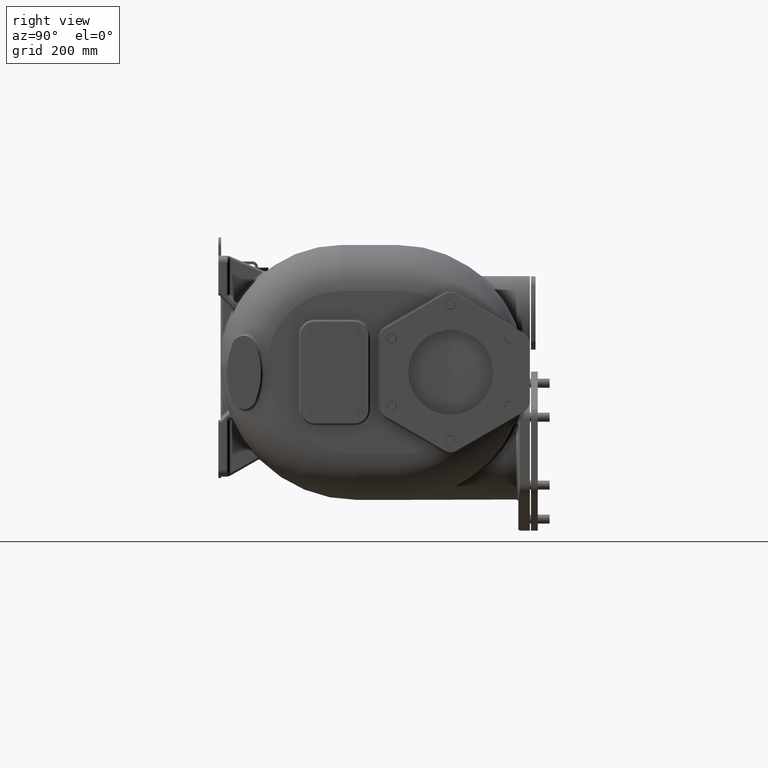
[diagram: clean part render]
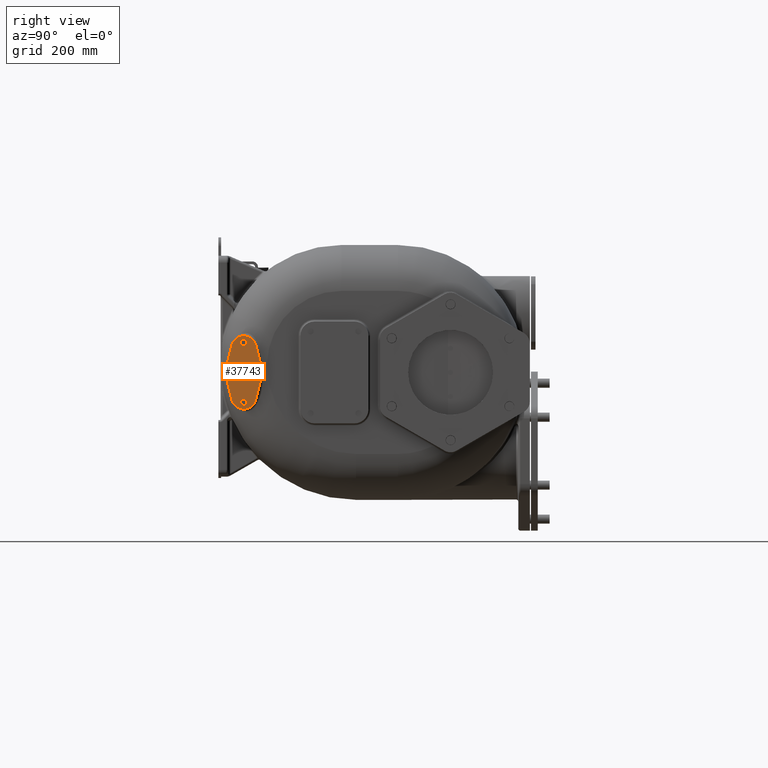
[diagram: same view with one face highlighted and labeled with its STEP entity id]
A machine part, right view. The second image highlights one B-rep face of the part: STEP entity #37743.
In plain terms, the highlighted planar face has unit normal (1, 0, 0).
Its self-contained STEP definition (entity closure, byte-faithful):
#37540=CARTESIAN_POINT('',(1.95E2,1.549999999963E2,-2.600168154567E1));
#37541=DIRECTION('',(1.E0,0.E0,0.E0));
#37542=DIRECTION('',(0.E0,-9.322295967066E-1,3.618673500390E-1));
#37543=AXIS2_PLACEMENT_3D('',#37540,#37541,#37542);
#37545=CARTESIAN_POINT('',(1.95E2,4.5E1,1.670663690865E1));
#37546=DIRECTION('',(1.E0,0.E0,0.E0));
#37547=DIRECTION('',(0.E0,9.323701608822E-1,3.615050249949E-1));
#37548=AXIS2_PLACEMENT_3D('',#37545,#37546,#37547);
#37550=CARTESIAN_POINT('',(1.95E2,-6.5E1,-2.600168154567E1));
#37551=DIRECTION('',(1.E0,0.E0,0.E0));
#37552=DIRECTION('',(0.E0,9.322295967101E-1,-3.618673500301E-1));
#37553=AXIS2_PLACEMENT_3D('',#37550,#37551,#37552);
#37555=CARTESIAN_POINT('',(1.95E2,4.5E1,-6.871E1));
#37556=DIRECTION('',(1.E0,0.E0,0.E0));
#37557=DIRECTION('',(0.E0,-9.323701608822E-1,-3.615050249948E-1));
#37558=AXIS2_PLACEMENT_3D('',#37555,#37556,#37557);
#37560=CARTESIAN_POINT('',(1.95E2,4.5E1,-7.851E1));
#37561=DIRECTION('',(1.E0,0.E0,0.E0));
#37562=DIRECTION('',(0.E0,0.E0,-1.E0));
#37563=AXIS2_PLACEMENT_3D('',#37560,#37561,#37562);
#37565=CARTESIAN_POINT('',(1.95E2,4.5E1,-7.851E1));
#37566=DIRECTION('',(1.E0,0.E0,0.E0));
#37567=DIRECTION('',(0.E0,0.E0,1.E0));
#37568=AXIS2_PLACEMENT_3D('',#37565,#37566,#37567);
#37570=CARTESIAN_POINT('',(1.95E2,4.5E1,2.649E1));
#37571=DIRECTION('',(-1.E0,0.E0,0.E0));
#37572=DIRECTION('',(0.E0,0.E0,1.E0));
#37573=AXIS2_PLACEMENT_3D('',#37570,#37571,#37572);
#37575=CARTESIAN_POINT('',(1.95E2,4.5E1,2.649E1));
#37576=DIRECTION('',(-1.E0,0.E0,0.E0));
#37577=DIRECTION('',(0.E0,0.E0,-1.E0));
#37578=AXIS2_PLACEMENT_3D('',#37575,#37576,#37577);
#37664=CARTESIAN_POINT('',(1.95E2,2.448785646059E1,2.465974745854E1));
#37665=CARTESIAN_POINT('',(1.95E2,2.448785646059E1,-7.666311054989E1));
#37666=VERTEX_POINT('',#37664);
#37667=VERTEX_POINT('',#37665);
#37668=CARTESIAN_POINT('',(1.95E2,6.551214353941E1,-7.666311054989E1));
#37669=VERTEX_POINT('',#37668);
#37670=CARTESIAN_POINT('',(1.95E2,6.551214353941E1,2.465974745854E1));
#37671=VERTEX_POINT('',#37670);
#37676=CARTESIAN_POINT('',(1.95E2,4.5E1,-8.426E1));
#37677=CARTESIAN_POINT('',(1.95E2,4.5E1,-7.276E1));
#37678=VERTEX_POINT('',#37676);
#37679=VERTEX_POINT('',#37677);
#37681=CARTESIAN_POINT('',(1.95E2,4.5E1,3.224E1));
#37683=VERTEX_POINT('',#37681);
#37685=CARTESIAN_POINT('',(1.95E2,4.5E1,2.074E1));
#37687=VERTEX_POINT('',#37685);
#37718=CARTESIAN_POINT('',(1.95E2,4.5E1,-2.601E1));
#37719=DIRECTION('',(1.E0,0.E0,0.E0));
#37720=DIRECTION('',(0.E0,0.E0,1.E0));
#37721=AXIS2_PLACEMENT_3D('',#37718,#37719,#37720);
#37722=PLANE('',#37721);
#37724=ORIENTED_EDGE('',*,*,#37723,.F.);
#37726=ORIENTED_EDGE('',*,*,#37725,.F.);
#37728=ORIENTED_EDGE('',*,*,#37727,.F.);
#37730=ORIENTED_EDGE('',*,*,#37729,.F.);
#37731=EDGE_LOOP('',(#37724,#37726,#37728,#37730));
#37732=FACE_OUTER_BOUND('',#37731,.F.);
#37734=ORIENTED_EDGE('',*,*,#37733,.T.);
#37736=ORIENTED_EDGE('',*,*,#37735,.T.);
#37737=EDGE_LOOP('',(#37734,#37736));
#37738=FACE_BOUND('',#37737,.F.);
#37739=ORIENTED_EDGE('',*,*,#37710,.F.);
#37740=ORIENTED_EDGE('',*,*,#37699,.F.);
#37741=EDGE_LOOP('',(#37739,#37740));
#37742=FACE_BOUND('',#37741,.F.);
#37743=ADVANCED_FACE('',(#37732,#37738,#37742),#37722,.T.);
#37544=CIRCLE('',#37543,1.399999999966E2);
#37549=CIRCLE('',#37548,2.2E1);
#37554=CIRCLE('',#37553,1.4E2);
#37559=CIRCLE('',#37558,2.2E1);
#37564=CIRCLE('',#37563,5.75E0);
#37569=CIRCLE('',#37568,5.75E0);
#37574=CIRCLE('',#37573,5.75E0);
#37579=CIRCLE('',#37578,5.75E0);
#37699=EDGE_CURVE('',#37687,#37683,#37579,.T.);
#37710=EDGE_CURVE('',#37683,#37687,#37574,.T.);
#37723=EDGE_CURVE('',#37666,#37667,#37544,.T.);
#37725=EDGE_CURVE('',#37671,#37666,#37549,.T.);
#37727=EDGE_CURVE('',#37669,#37671,#37554,.T.);
#37729=EDGE_CURVE('',#37667,#37669,#37559,.T.);
#37733=EDGE_CURVE('',#37678,#37679,#37564,.T.);
#37735=EDGE_CURVE('',#37679,#37678,#37569,.T.);